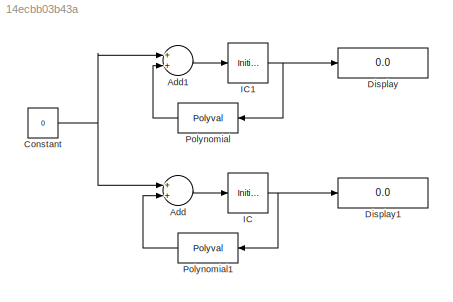
MODEL slx_14ecbb03b43a
KIND model
CONFIG AbsTol = auto
CONFIG EnableMultiTasking = on
CONFIG FixedStep = auto
CONFIG MaxStep = auto
CONFIG MinStep = auto
CONFIG RelTol = 1e-12
CONFIG SampleTimeConstraint = Unconstrained
CONFIG Solver = ode45
CONFIG SolverName = ode45
CONFIG StartTime = 0.0
CONFIG StopTime = 10.0
BLOCK [Sum] Add
  InputSameDT = off
  OutDataTypeStr = Inherit: Inherit via internal rule
  Ports = [2, 1]
  SaturateOnIntegerOverflow = off
BLOCK [Sum] Add1
  InputSameDT = off
  OutDataTypeStr = Inherit: Inherit via internal rule
  Ports = [2, 1]
  SaturateOnIntegerOverflow = off
BLOCK [Constant] Constant
  Value = 0
BLOCK [Display] Display
  Decimation = 1
  Ports = [1]
BLOCK [Display] Display1
  Decimation = 1
  Ports = [1]
BLOCK [InitialCondition] IC
  Value = -100
BLOCK [InitialCondition] IC1
  Value = 100
BLOCK [Polyval] Polynomial
  AttributesFormatString = Coefficients:  %<Coefs>
  Coefs = [-1 -5 1]
BLOCK [Polyval] Polynomial1
  AttributesFormatString = Coefficients:  %<Coefs>
  Coefs = [-1 -5 1]
LINE Add1:1 -> IC1:1
LINE Add:1 -> IC:1
NET Constant:1 -> Add1:1, Add:1
NET IC1:1 -> Display:1, Polynomial:1
NET IC:1 -> Display1:1, Polynomial1:1
LINE Polynomial1:1 -> Add:2
LINE Polynomial:1 -> Add1:2
note: NET lines group one-source signal fan-out (src -> all destinations, sorted); 1:1 wires keep LINE
